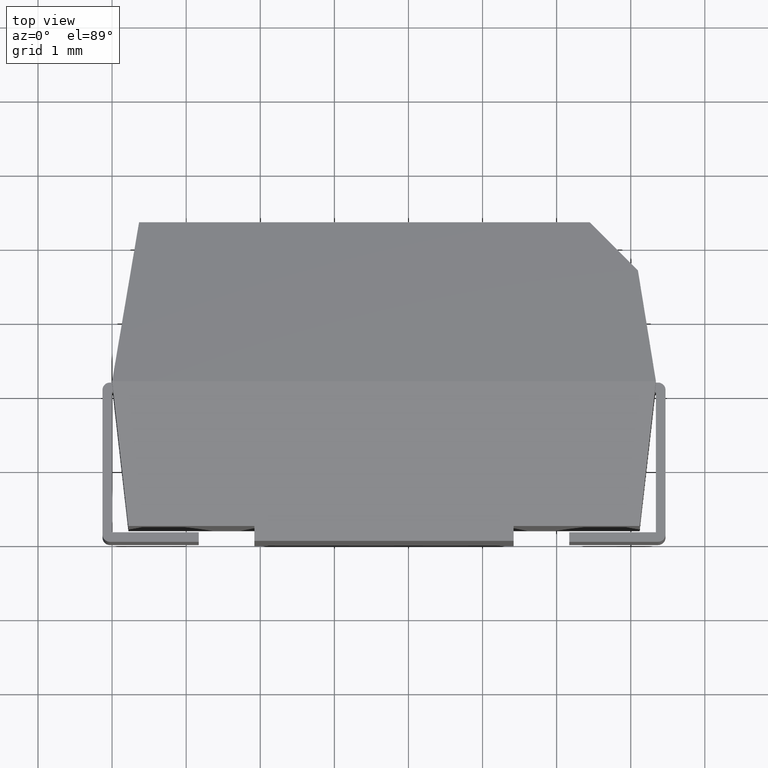
[diagram: clean part render]
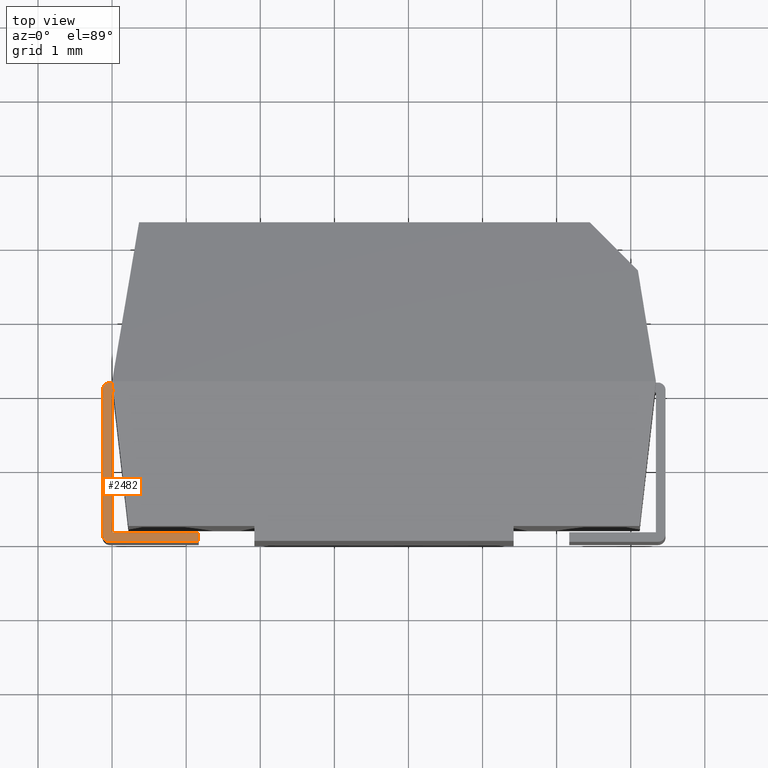
[diagram: same view with one face highlighted and labeled with its STEP entity id]
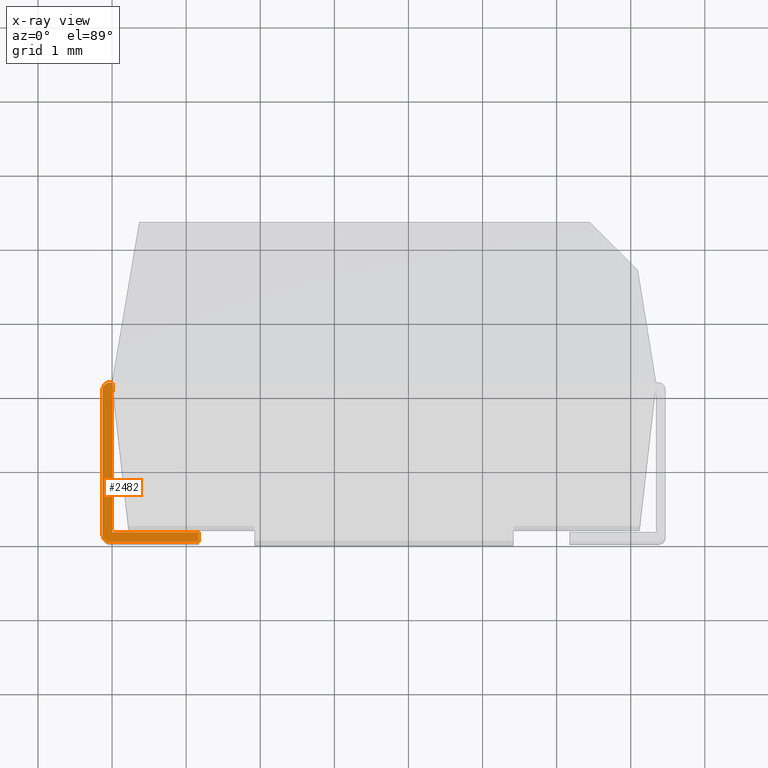
[diagram: x-ray of the same camera — body ghosted, the highlighted face saturated]
A machine part, top view. The second image highlights one B-rep face of the part: STEP entity #2482.
The next image is the same camera in x-ray: the body ghosted, the highlighted face saturated — about 0% of this face is hidden behind the body in this view.
In plain terms, the highlighted planar face has unit normal (-0, 0, 1).
Its self-contained STEP definition (entity closure, byte-faithful):
#50 = VECTOR ( 'NONE', #2834, 1000.000000000000000 ) ;
#54 = LINE ( 'NONE', #1271, #3420 ) ;
#159 = PLANE ( 'NONE',  #2625 ) ;
#368 = CARTESIAN_POINT ( 'NONE',  ( 0.01469024186046498891, 2.020000000000003570, -1.049999999999999822 ) ) ;
#378 = ORIENTED_EDGE ( 'NONE', *, *, #1511, .F. ) ;
#403 = AXIS2_PLACEMENT_3D ( 'NONE', #1685, #2276, #1091 ) ;
#421 = VECTOR ( 'NONE', #2887, 1000.000000000000000 ) ;
#424 = ORIENTED_EDGE ( 'NONE', *, *, #2147, .T. ) ;
#452 = VECTOR ( 'NONE', #3559, 1000.000000000000000 ) ;
#468 = LINE ( 'NONE', #1403, #798 ) ;
#495 = EDGE_CURVE ( 'NONE', #3725, #659, #1696, .T. ) ;
#509 = EDGE_LOOP ( 'NONE', ( #984, #3498, #378, #643, #3318, #424, #1635, #2025, #2950, #1672 ) ) ;
#545 = CARTESIAN_POINT ( 'NONE',  ( -0.1299999999999999767, 2.150000000000003464, -1.049999999999999822 ) ) ;
#643 = ORIENTED_EDGE ( 'NONE', *, *, #2905, .F. ) ;
#659 = VERTEX_POINT ( 'NONE', #3395 ) ;
#778 = CARTESIAN_POINT ( 'NONE',  ( -0.1299999999999999767, 2.150000000000003464, -1.049999999999999822 ) ) ;
#798 = VECTOR ( 'NONE', #1644, 1000.000000000000000 ) ;
#834 = DIRECTION ( 'NONE',  ( -0.000000000000000000, -1.000000000000000000, -0.000000000000000000 ) ) ;
#847 = CARTESIAN_POINT ( 'NONE',  ( -0.1299999999999999767, 0.1000000000000032946, -1.049999999999999822 ) ) ;
#984 = ORIENTED_EDGE ( 'NONE', *, *, #2136, .T. ) ;
#1083 = LINE ( 'NONE', #3500, #2051 ) ;
#1091 = DIRECTION ( 'NONE',  ( 1.000000000000000000, 0.000000000000000000, 0.000000000000000000 ) ) ;
#1159 = VERTEX_POINT ( 'NONE', #3274 ) ;
#1236 = DIRECTION ( 'NONE',  ( -1.000000000000000000, -0.000000000000000000, -0.000000000000000000 ) ) ;
#1265 = CARTESIAN_POINT ( 'NONE',  ( -0.02999999999999998501, 2.050000000000003819, -1.049999999999999822 ) ) ;
#1271 = CARTESIAN_POINT ( 'NONE',  ( 1.169999999999999929, 0.1300000000000034739, -1.049999999999999822 ) ) ;
#1403 = CARTESIAN_POINT ( 'NONE',  ( 5.510910596163084009E-17, 3.469446951953614189E-15, -1.049999999999999822 ) ) ;
#1487 = CARTESIAN_POINT ( 'NONE',  ( 0.000000000000000000, 2.149999999999998135, -1.050000000000000044 ) ) ;
#1511 = EDGE_CURVE ( 'NONE', #2860, #659, #3702, .T. ) ;
#1542 = LINE ( 'NONE', #2416, #452 ) ;
#1635 = ORIENTED_EDGE ( 'NONE', *, *, #1819, .T. ) ;
#1644 = DIRECTION ( 'NONE',  ( -0.000000000000000000, 1.000000000000000000, -0.000000000000000000 ) ) ;
#1672 = ORIENTED_EDGE ( 'NONE', *, *, #2359, .T. ) ;
#1683 = LINE ( 'NONE', #545, #421 ) ;
#1685 = CARTESIAN_POINT ( 'NONE',  ( -0.02999999999999998501, 0.1000000000000034750, -1.049999999999999822 ) ) ;
#1696 = CIRCLE ( 'NONE', #403, 0.1000000000000000056 ) ;
#1756 = CARTESIAN_POINT ( 'NONE',  ( 0.000000000000000000, 0.1300000000000034739, -1.049999999999999822 ) ) ;
#1819 = EDGE_CURVE ( 'NONE', #3021, #2446, #3206, .T. ) ;
#1856 = EDGE_CURVE ( 'NONE', #2446, #1926, #2641, .T. ) ;
#1926 = VERTEX_POINT ( 'NONE', #1487 ) ;
#1947 = CARTESIAN_POINT ( 'NONE',  ( 1.169999999999999929, 0.1300000000000034739, -1.049999999999999822 ) ) ;
#1965 = AXIS2_PLACEMENT_3D ( 'NONE', #1265, #3018, #3637 ) ;
#2025 = ORIENTED_EDGE ( 'NONE', *, *, #1856, .T. ) ;
#2029 = CARTESIAN_POINT ( 'NONE',  ( -0.02999999999999998501, 2.150000000000003464, -1.049999999999999822 ) ) ;
#2051 = VECTOR ( 'NONE', #834, 1000.000000000000000 ) ;
#2136 = EDGE_CURVE ( 'NONE', #1159, #3725, #1683, .T. ) ;
#2147 = EDGE_CURVE ( 'NONE', #2612, #3021, #468, .T. ) ;
#2224 = FACE_OUTER_BOUND ( 'NONE', #509, .T. ) ;
#2276 = DIRECTION ( 'NONE',  ( -0.000000000000000000, 0.000000000000000000, 1.000000000000000000 ) ) ;
#2359 = EDGE_CURVE ( 'NONE', #2917, #1159, #3631, .T. ) ;
#2416 = CARTESIAN_POINT ( 'NONE',  ( -0.1299999999999999767, 2.150000000000003464, -1.049999999999999822 ) ) ;
#2446 = VERTEX_POINT ( 'NONE', #368 ) ;
#2482 = ADVANCED_FACE ( 'NONE', ( #2224 ), #159, .T. ) ;
#2580 = CARTESIAN_POINT ( 'NONE',  ( -0.1299999999999999767, 2.020000000000003570, -1.049999999999999822 ) ) ;
#2612 = VERTEX_POINT ( 'NONE', #1756 ) ;
#2625 = AXIS2_PLACEMENT_3D ( 'NONE', #778, #3385, #3115 ) ;
#2641 = LINE ( 'NONE', #3438, #3687 ) ;
#2834 = DIRECTION ( 'NONE',  ( -1.000000000000000000, -0.000000000000000000, -0.000000000000000000 ) ) ;
#2860 = VERTEX_POINT ( 'NONE', #2919 ) ;
#2887 = DIRECTION ( 'NONE',  ( 0.000000000000000000, -1.000000000000000000, 0.000000000000000000 ) ) ;
#2905 = EDGE_CURVE ( 'NONE', #3138, #2860, #1083, .T. ) ;
#2917 = VERTEX_POINT ( 'NONE', #2029 ) ;
#2919 = CARTESIAN_POINT ( 'NONE',  ( 1.169999999999999929, 3.469446951953614189E-15, -1.049999999999999822 ) ) ;
#2950 = ORIENTED_EDGE ( 'NONE', *, *, #3398, .F. ) ;
#3010 = VECTOR ( 'NONE', #3478, 1000.000000000000000 ) ;
#3018 = DIRECTION ( 'NONE',  ( -0.000000000000000000, 0.000000000000000000, 1.000000000000000000 ) ) ;
#3021 = VERTEX_POINT ( 'NONE', #3378 ) ;
#3115 = DIRECTION ( 'NONE',  ( 1.000000000000000000, 0.000000000000000000, 0.000000000000000000 ) ) ;
#3127 = DIRECTION ( 'NONE',  ( -0.1122872133156342100, 0.9936757930662341032, 0.000000000000000000 ) ) ;
#3138 = VERTEX_POINT ( 'NONE', #1947 ) ;
#3206 = LINE ( 'NONE', #2580, #3010 ) ;
#3274 = CARTESIAN_POINT ( 'NONE',  ( -0.1299999999999999767, 2.050000000000003819, -1.049999999999999822 ) ) ;
#3318 = ORIENTED_EDGE ( 'NONE', *, *, #3797, .T. ) ;
#3378 = CARTESIAN_POINT ( 'NONE',  ( 7.047314121155778821E-16, 2.020000000000003570, -1.049999999999999822 ) ) ;
#3385 = DIRECTION ( 'NONE',  ( -0.000000000000000000, 0.000000000000000000, 1.000000000000000000 ) ) ;
#3395 = CARTESIAN_POINT ( 'NONE',  ( -0.02999999999999998501, 3.469446951953614189E-15, -1.049999999999999822 ) ) ;
#3398 = EDGE_CURVE ( 'NONE', #2917, #1926, #1542, .T. ) ;
#3420 = VECTOR ( 'NONE', #1236, 1000.000000000000000 ) ;
#3429 = CARTESIAN_POINT ( 'NONE',  ( -0.1299999999999999767, 3.469446951953614189E-15, -1.049999999999999822 ) ) ;
#3438 = CARTESIAN_POINT ( 'NONE',  ( 0.2398907343466122610, 0.02710809928951012082, -1.049999999999999822 ) ) ;
#3478 = DIRECTION ( 'NONE',  ( 1.000000000000000000, 0.000000000000000000, 0.000000000000000000 ) ) ;
#3498 = ORIENTED_EDGE ( 'NONE', *, *, #495, .T. ) ;
#3500 = CARTESIAN_POINT ( 'NONE',  ( 1.169999999999999929, 3.469446951953614189E-15, -1.049999999999999822 ) ) ;
#3559 = DIRECTION ( 'NONE',  ( 1.000000000000000000, 0.000000000000000000, 0.000000000000000000 ) ) ;
#3631 = CIRCLE ( 'NONE', #1965, 0.1000000000000000056 ) ;
#3637 = DIRECTION ( 'NONE',  ( 1.000000000000000000, 0.000000000000000000, 0.000000000000000000 ) ) ;
#3687 = VECTOR ( 'NONE', #3127, 1000.000000000000000 ) ;
#3702 = LINE ( 'NONE', #3429, #50 ) ;
#3725 = VERTEX_POINT ( 'NONE', #847 ) ;
#3797 = EDGE_CURVE ( 'NONE', #3138, #2612, #54, .T. ) ;